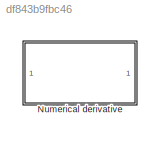
MODEL slx_df843b9fbc46
KIND model
CONFIG AbsTol = auto
CONFIG EnableMultiTasking = off
CONFIG FixedStep = auto
CONFIG MaxStep = auto
CONFIG MinStep = auto
CONFIG RelTol = 1e-3
CONFIG SampleTimeConstraint = Unconstrained
CONFIG Solver = VariableStepAuto
CONFIG SolverName = VariableStepAuto
CONFIG StartTime = 0.0
CONFIG StopTime = 10.0
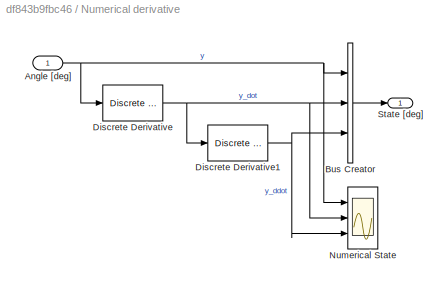
BLOCK [SubSystem] Numerical derivative
  Ports = [1, 1]
  RequestExecContextInheritance = off
BLOCK [Inport] Numerical derivative/Angle [deg]
  IconDisplay = Port number
BLOCK [BusCreator] Numerical derivative/Bus Creator
  DisplayOption = bar
  InheritFromInputs = on
  Inputs = 3
  Ports = [3, 1]
BLOCK [Reference] Numerical derivative/Discrete Derivative  REF=simulink/Discrete/Discrete Derivative
  Ports = [1, 1]
  SourceBlock = simulink/Discrete/Discrete Derivative
  SourceProductBaseCode = SL
  SourceProductName = Simulink
  SourceType = Discrete Derivative
BLOCK [Reference] Numerical derivative/Discrete Derivative1  REF=simulink/Discrete/Discrete Derivative
  Ports = [1, 1]
  SourceBlock = simulink/Discrete/Discrete Derivative
  SourceProductBaseCode = SL
  SourceProductName = Simulink
  SourceType = Discrete Derivative
BLOCK [Scope] Numerical derivative/Numerical State
  Floating = off
  NumInputPorts = 3
  Ports = [3]
  ScopeSpecificationString = Simulink.scopes.TimeScopeBlockCfg('CurrentConfiguration', extmgr.ConfigurationSet(extmgr.Configuration('Core','General UI',true),extmgr.Configuration('Core','Source UI',true),extmgr.Configuration('Sources','WiredSimulink',true,'DataLoggingVariableName','ScopeData2','DataLoggingSaveFormat','StructureWithTime'),extmgr.Configuration('Visuals','Time Domain',true,'SerializedDisplays',{struct('MinYLimRe...<+2770ch>
BLOCK [Outport] Numerical derivative/State [deg]
  IconDisplay = Port number
NET Numerical derivative/Angle [deg]:1 -> Numerical derivative/Bus Creator:1, Numerical derivative/Discrete Derivative:1, Numerical derivative/Numerical State:1
LINE Numerical derivative/Bus Creator:1 -> Numerical derivative/State [deg]:1
NET Numerical derivative/Discrete Derivative1:1 -> Numerical derivative/Bus Creator:3, Numerical derivative/Numerical State:3
NET Numerical derivative/Discrete Derivative:1 -> Numerical derivative/Bus Creator:2, Numerical derivative/Discrete Derivative1:1, Numerical derivative/Numerical State:2
note: NET lines group one-source signal fan-out (src -> all destinations, sorted); 1:1 wires keep LINE
